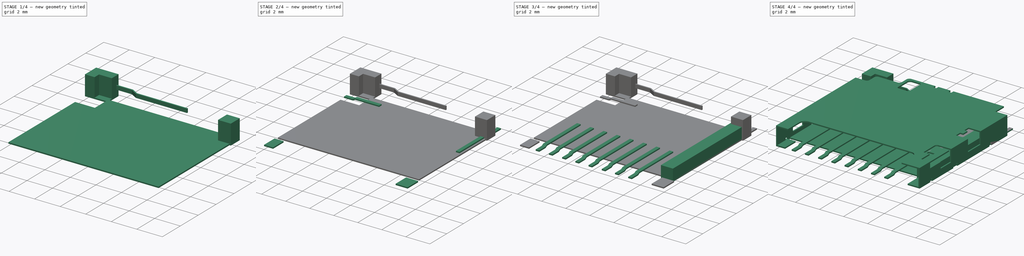
[diagram: build sequence overview — one tinted view per stage of 4, left to right]
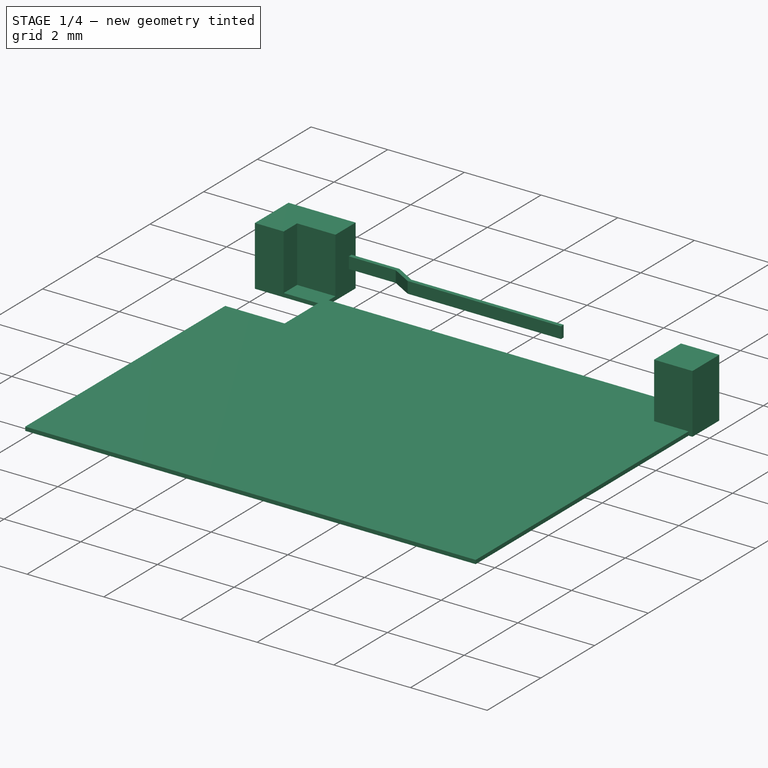
[diagram: stage 1 of 4 — iso view after this stage's code; geometry added in this stage tinted green]
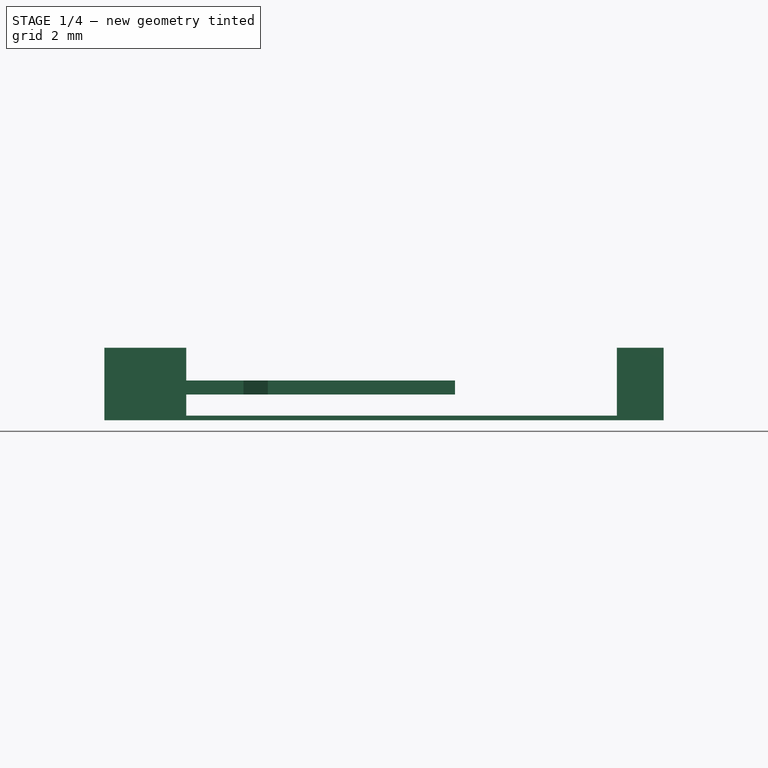
[diagram: stage 1 of 4 — front view after this stage's code; geometry added in this stage tinted green]
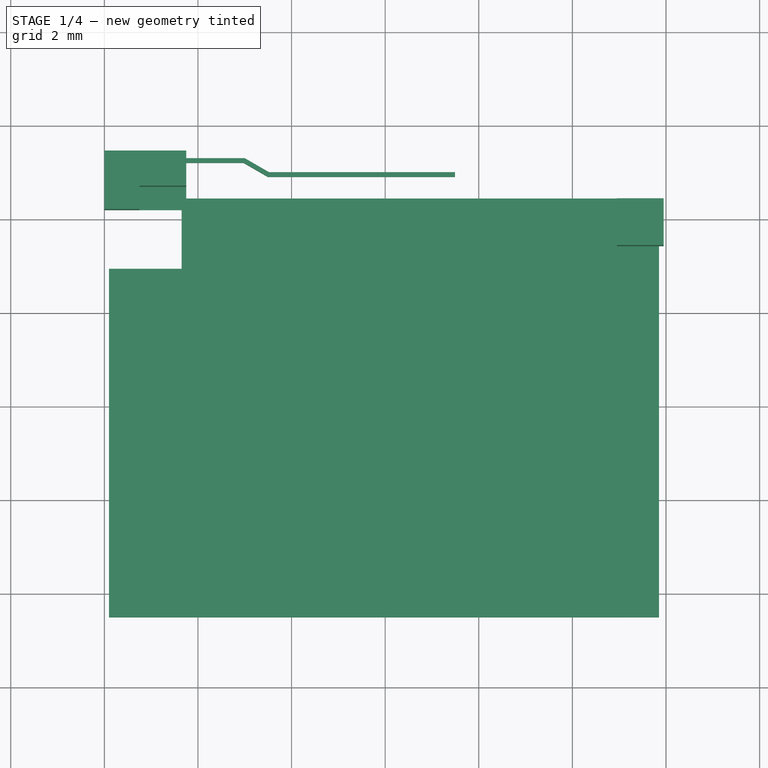
[diagram: stage 1 of 4 — top view after this stage's code; geometry added in this stage tinted green]
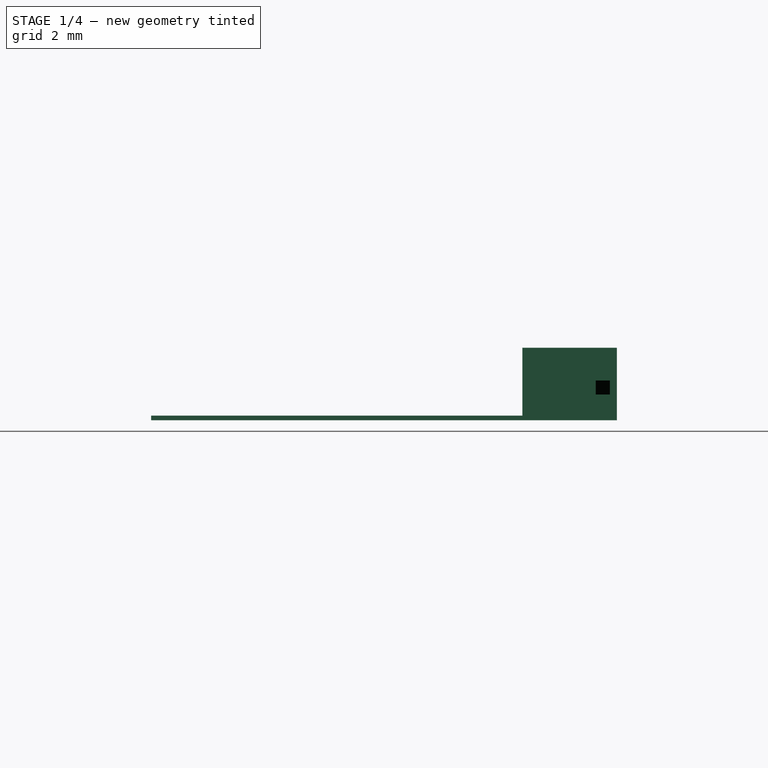
[diagram: stage 1 of 4 — right view after this stage's code; geometry added in this stage tinted green]
FCSTD DOCUMENT  (FreeCAD 0.15R4671 (Git))
Label: microSD_HC_Hirose_DM3D-SF
License: All rights reserved
LicenseURL: http://en.wikipedia.org/wiki/All_rights_reserved
objects: Sketcher::SketchObject×12, PartDesign::Pad×12, Part::FeaturePython×1, Part::MultiFuse×1
note: 38 computed .brp shape members not serialized (recipe doc carries the construction recipe); baked Part::Feature solids carry a one-line shape summary decoded from their .brp

FEATURE [Sketcher::SketchObject] Sketch009
  sketch-geometry (10):
    g0: LineSegment StartX=0 StartY=10.2 StartZ=0 EndX=0.75 EndY=10.2 EndZ=0
    g1: LineSegment StartX=0.75 StartY=10.2 StartZ=0 EndX=0.75 EndY=10.7 EndZ=0
    g2: LineSegment StartX=0.75 StartY=10.7 StartZ=0 EndX=1.75 EndY=10.7 EndZ=0
    g3: LineSegment StartX=1.75 StartY=10.7 StartZ=0 EndX=1.75 EndY=11.45 EndZ=0
    g4: LineSegment StartX=1.75 StartY=11.45 StartZ=0 EndX=0 EndY=11.45 EndZ=0
    g5: LineSegment StartX=0 StartY=11.45 StartZ=0 EndX=0 EndY=10.2 EndZ=0
    g6: LineSegment StartX=11.95 StartY=10.4314 StartZ=0 EndX=10.95 EndY=10.4314 EndZ=0
    g7: LineSegment StartX=10.95 StartY=10.4314 StartZ=0 EndX=10.95 EndY=9.43143 EndZ=0
    g8: LineSegment StartX=10.95 StartY=9.43143 StartZ=0 EndX=11.95 EndY=9.43143 EndZ=0
    g9: LineSegment StartX=11.95 StartY=9.43143 StartZ=0 EndX=11.95 EndY=10.4314 EndZ=0
  constraints (29):
    c: PointOnObject(g0,g-2)
    c: Horizontal(g0)
    c: Coincident(g0,g1)
    c: Vertical(g1)
    c: Coincident(g1,g2)
    c: Horizontal(g2)
    c: Coincident(g2,g3)
    c: Vertical(g3)
    c: Coincident(g3,g4)
    c: PointOnObject(g4,g-2)
    c: Horizontal(g4)
    c: Coincident(g4,g5)
    c: Coincident(g5,g0)
    c: Distance(g0) = 0.75
    c: Distance(g3) = 0.75
    c: Distance(g2) = 1
    c: DistanceY(g-1,g4) = 11.45
    c: Distance(g1) = 0.5
    c: Coincident(g6,g7)
    c: Coincident(g7,g8)
    c: Coincident(g8,g9)
    c: Coincident(g9,g6)
    c: Horizontal(g6)
    c: Horizontal(g8)
    c: Vertical(g7)
    c: Vertical(g9)
    c: DistanceX(g-2,g6) = 11.95
    c: Distance(g6) = 1
    c: Distance(g9) = 1
FEATURE [PartDesign::Pad] Pad009  label="Corners"
  Length = 1.55
  Length2 = 100
  Sketch = -> Sketch009
  Type = 0
FEATURE [Sketcher::SketchObject] Sketch010
  sketch-geometry (4):
    g0: LineSegment StartX=0 StartY=11.45 StartZ=0 EndX=1.75 EndY=11.45 EndZ=0
    g1: LineSegment StartX=1.75 StartY=11.45 StartZ=0 EndX=1.75 EndY=10.2 EndZ=0
    g2: LineSegment StartX=1.75 StartY=10.2 StartZ=0 EndX=0 EndY=10.2 EndZ=0
    g3: LineSegment StartX=0 StartY=10.2 StartZ=0 EndX=0 EndY=11.45 EndZ=0
  constraints (12):
    c: Coincident(g0,g1)
    c: Coincident(g1,g2)
    c: Coincident(g2,g3)
    c: Coincident(g3,g0)
    c: Horizontal(g0)
    c: Horizontal(g2)
    c: Vertical(g1)
    c: Vertical(g3)
    c: PointOnObject(g0,g-2)
    c: Distance(g1) = 1.25
    c: Distance(g0) = 1.75
    c: DistanceY(g-1,g0) = 11.45
FEATURE [PartDesign::Pad] Pad010  label="CornerBottom"
  Length = 0.1
  Length2 = 100
  Sketch = -> Sketch010
  Type = 0
FEATURE [Sketcher::SketchObject] Sketch011
  Placement = pos=(0,0,0.7) rot=(0,0,1;0rad)
  sketch-geometry (9):
    g0: LineSegment StartX=0.5 StartY=11.2 StartZ=0 EndX=2.97321 EndY=11.2 EndZ=0
    g1: LineSegment StartX=2.97321 StartY=11.2 StartZ=0 EndX=3.49282 EndY=10.9 EndZ=0
    g2: LineSegment StartX=3.49282 StartY=10.9 StartZ=0 EndX=7.49282 EndY=10.9 EndZ=0
    g3: LineSegment StartX=7.49282 StartY=10.9 StartZ=0 EndX=7.49282 EndY=11 EndZ=0
    g4: LineSegment StartX=7.49282 StartY=11 StartZ=0 EndX=3.51962 EndY=11 EndZ=0
    g5: LineSegment StartX=3.51962 StartY=11 StartZ=0 EndX=3 EndY=11.3 EndZ=0
    g6: LineSegment StartX=3 StartY=11.3 StartZ=0 EndX=0.5 EndY=11.3 EndZ=0
    g7: LineSegment StartX=0.5 StartY=11.3 StartZ=0 EndX=0.5 EndY=11.2 EndZ=0
    g8: LineSegment [constr] StartX=2.92243 StartY=11.2293 StartZ=0 EndX=2.97243 EndY=11.3159 EndZ=0
  constraints (27):
    c: Horizontal(g0)
    c: Coincident(g0,g1)
    c: Coincident(g1,g2)
    c: Horizontal(g2)
    c: Coincident(g2,g3)
    c: Vertical(g3)
    c: Coincident(g3,g4)
    c: Horizontal(g4)
    c: Coincident(g4,g5)
    c: Coincident(g5,g6)
    c: Horizontal(g6)
    c: Coincident(g6,g7)
    c: Coincident(g7,g0)
    c: Vertical(g7)
    c: Distance(g7) = 0.1
    c: Distance(g3) = 0.1
    c: PointOnObject(g8,g1)
    c: PointOnObject(g8,g5)
    c: Perpendicular(g5,g8)
    c: Parallel(g1,g5)
    c: Distance(g8) = 0.1
    c: DistanceX(g-2,g6) = 0.5
    c: Distance(g6) = 2.5
    c: Distance(g4,g6) = 0.3
    c: Distance(g2) = 4
    c: DistanceY(g-1,g6) = 11.3
    c: Angle(g6,g5) = 2.61799
FEATURE [PartDesign::Pad] Pad011  label="Detector"
  Length = 0.3
  Length2 = 100
  Midplane = true
  Placement = pos=(0,0,0.7) rot=(0,0,1;0rad)
  Sketch = -> Sketch011
  Type = 0
FEATURE [Sketcher::SketchObject] Sketch012
  sketch-geometry (6):
    g0: LineSegment StartX=0.1 StartY=1.5 StartZ=0 EndX=11.85 EndY=1.5 EndZ=0
    g1: LineSegment StartX=11.85 StartY=1.5 StartZ=0 EndX=11.85 EndY=10.45 EndZ=0
    g2: LineSegment StartX=11.85 StartY=10.45 StartZ=0 EndX=1.65 EndY=10.45 EndZ=0
    g3: LineSegment StartX=1.65 StartY=10.45 StartZ=0 EndX=1.65 EndY=8.95 EndZ=0
    g4: LineSegment StartX=1.65 StartY=8.95 StartZ=0 EndX=0.1 EndY=8.95 EndZ=0
    g5: LineSegment StartX=0.1 StartY=8.95 StartZ=0 EndX=0.1 EndY=1.5 EndZ=0
  constraints (18):
    c: Horizontal(g0)
    c: Coincident(g0,g1)
    c: Vertical(g1)
    c: Coincident(g1,g2)
    c: Horizontal(g2)
    c: Coincident(g2,g3)
    c: Vertical(g3)
    c: Coincident(g3,g4)
    c: Horizontal(g4)
    c: Coincident(g4,g5)
    c: Coincident(g5,g0)
    c: Vertical(g5)
    c: DistanceY(g-1,g0) = 1.5
    c: DistanceX(g-2,g0) = 0.1
    c: Distance(g0) = 11.75
    c: Distance(g2) = 10.2
    c: DistanceY(g-1,g1) = 10.45
    c: Distance(g3) = 1.5
FEATURE [PartDesign::Pad] Pad012  label="Bottom"
  Length = 0.1
  Length2 = 100
  Sketch = -> Sketch012
  Type = 0
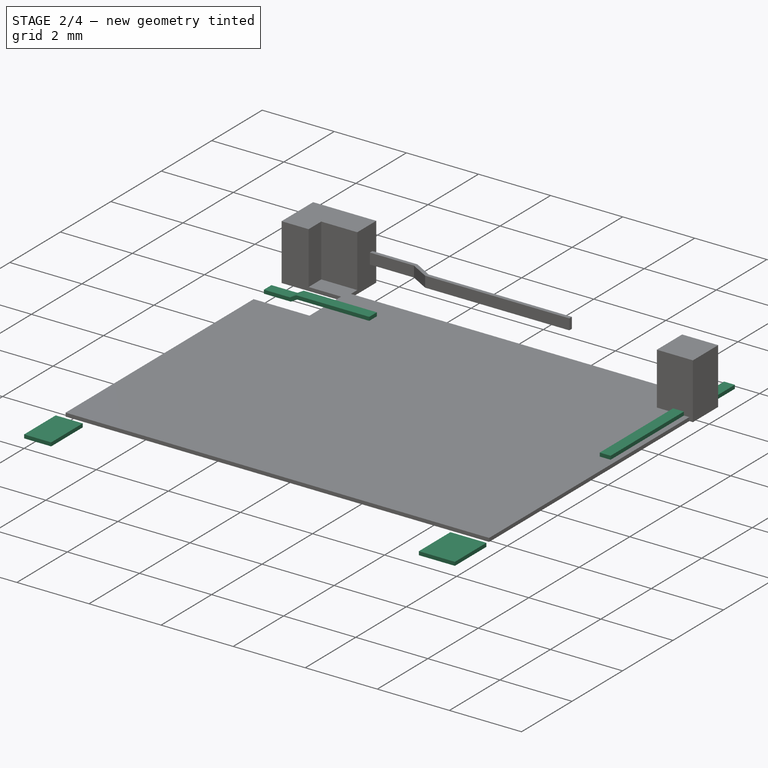
[diagram: stage 2 of 4 — iso view after this stage's code; geometry added in this stage tinted green]
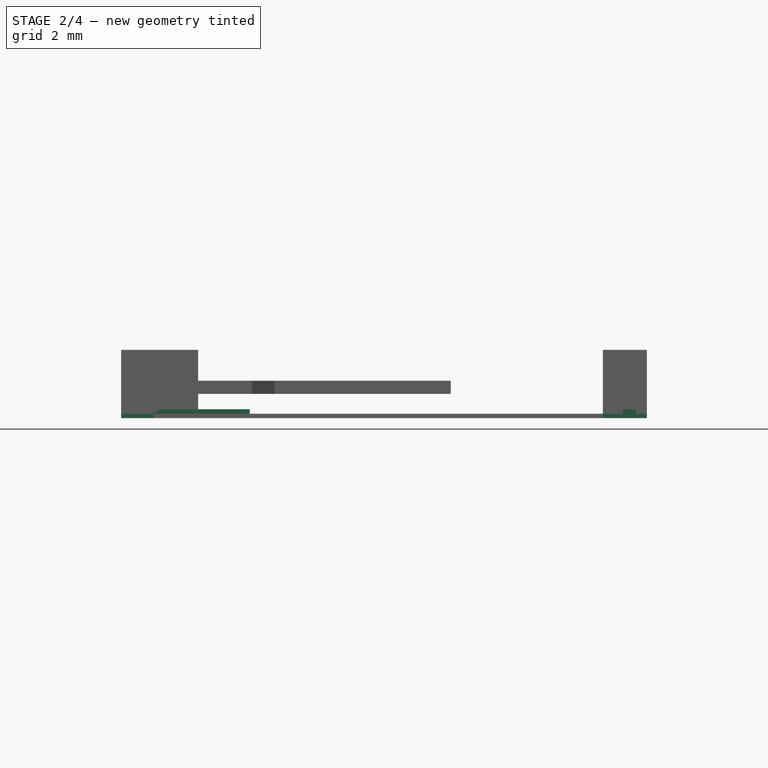
[diagram: stage 2 of 4 — front view after this stage's code; geometry added in this stage tinted green]
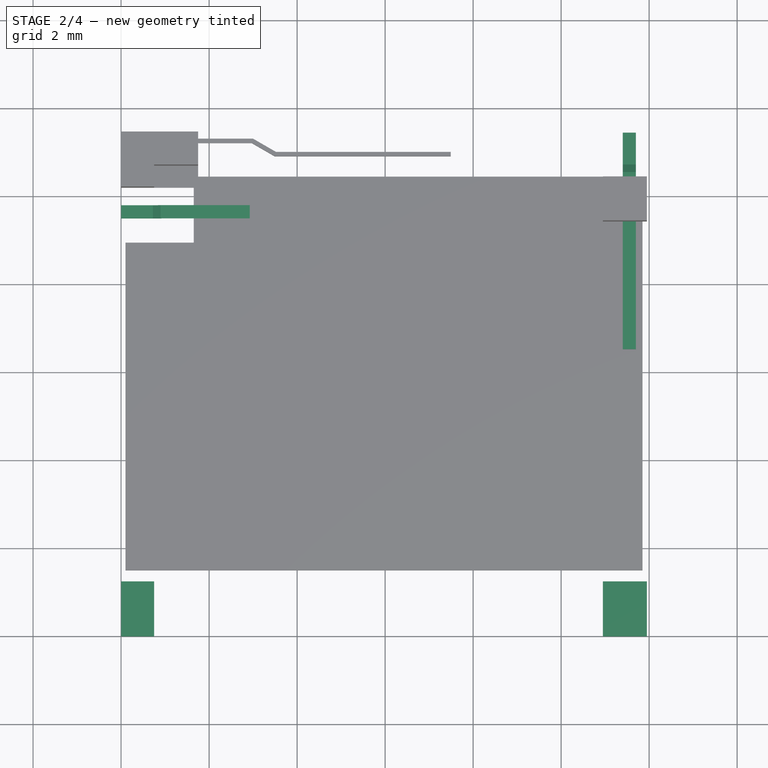
[diagram: stage 2 of 4 — top view after this stage's code; geometry added in this stage tinted green]
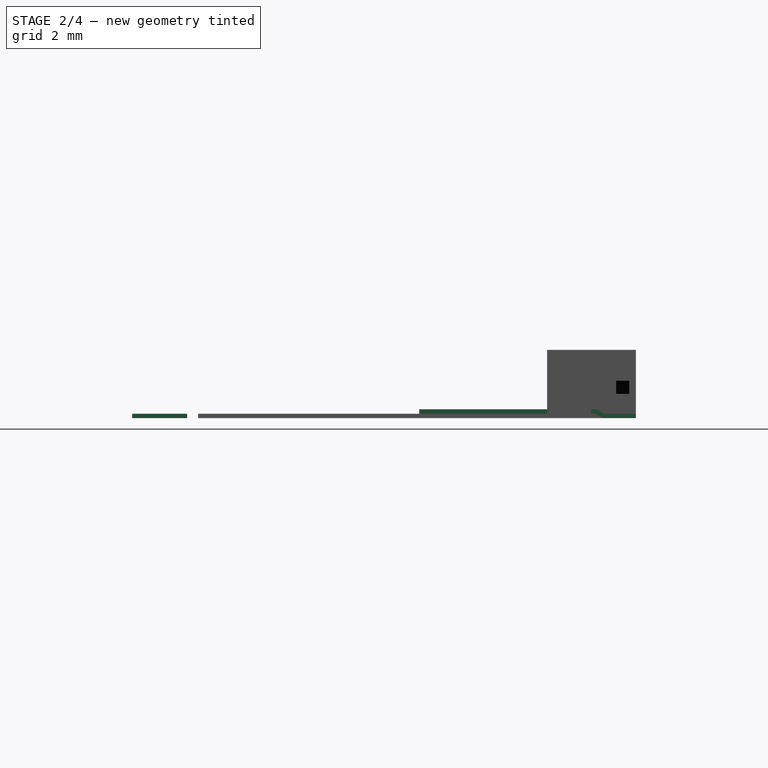
[diagram: stage 2 of 4 — right view after this stage's code; geometry added in this stage tinted green]
FEATURE [Sketcher::SketchObject] Sketch006
  sketch-geometry (8):
    g0: LineSegment StartX=11.95 StartY=0 StartZ=0 EndX=10.95 EndY=0 EndZ=0
    g1: LineSegment StartX=10.95 StartY=0 StartZ=0 EndX=10.95 EndY=1.25 EndZ=0
    g2: LineSegment StartX=10.95 StartY=1.25 StartZ=0 EndX=11.95 EndY=1.25 EndZ=0
    g3: LineSegment StartX=11.95 StartY=1.25 StartZ=0 EndX=11.95 EndY=0 EndZ=0
    g4: LineSegment StartX=0 StartY=0 StartZ=0 EndX=0.75 EndY=0 EndZ=0
    g5: LineSegment StartX=0.75 StartY=0 StartZ=0 EndX=0.75 EndY=1.25 EndZ=0
    g6: LineSegment StartX=0.75 StartY=1.25 StartZ=0 EndX=0 EndY=1.25 EndZ=0
    g7: LineSegment StartX=0 StartY=1.25 StartZ=0 EndX=0 EndY=0 EndZ=0
  constraints (23):
    c: Coincident(g0,g1)
    c: Coincident(g1,g2)
    c: Coincident(g2,g3)
    c: Coincident(g3,g0)
    c: Horizontal(g0)
    c: Horizontal(g2)
    c: Vertical(g1)
    c: Vertical(g3)
    c: PointOnObject(g0,g-1)
    c: Coincident(g4,g5)
    c: Coincident(g5,g6)
    c: Coincident(g6,g7)
    c: Coincident(g7,g4)
    c: Horizontal(g4)
    c: Horizontal(g6)
    c: Vertical(g5)
    c: Vertical(g7)
    c: Coincident(g4,g-1)
    c: Distance(g7) = 1.25
    c: Distance(g1) = 1.25
    c: Distance(g6) = 0.75
    c: Distance(g2) = 1
    c: Distance(g-1,g0) = 11.95
FEATURE [PartDesign::Pad] Pad006  label="BottomMetal"
  Length = 0.1
  Length2 = 100
  Sketch = -> Sketch006
  Type = 0
FEATURE [Sketcher::SketchObject] Sketch007
  Placement = pos=(11.55,0,0) rot=(0.57735,0.57735,0.57735;2.0944rad)
  sketch-geometry (9):
    g0: LineSegment StartX=11.45 StartY=0 StartZ=0 EndX=11.45 EndY=0.1 EndZ=0
    g1: LineSegment StartX=11.45 StartY=0.1 StartZ=0 EndX=10.7268 EndY=0.1 EndZ=0
    g2: LineSegment StartX=10.7268 StartY=0.1 StartZ=0 EndX=10.5536 EndY=0.2 EndZ=0
    g3: LineSegment StartX=10.5536 StartY=0.2 StartZ=0 EndX=6.52679 EndY=0.2 EndZ=0
    g4: LineSegment StartX=6.52679 StartY=0.2 StartZ=0 EndX=6.52679 EndY=0.1 EndZ=0
    g5: LineSegment StartX=6.52679 StartY=0.1 StartZ=0 EndX=10.5268 EndY=0.1 EndZ=0
    g6: LineSegment StartX=10.5268 StartY=0.1 StartZ=0 EndX=10.7 EndY=0 EndZ=0
    g7: LineSegment StartX=10.7 StartY=0 StartZ=0 EndX=11.45 EndY=0 EndZ=0
    g8: LineSegment [constr] StartX=10.7004 StartY=-0.000257824 StartZ=0 EndX=10.7504 EndY=0.0863447 EndZ=0
  constraints (27):
    c: PointOnObject(g0,g-1)
    c: Vertical(g0)
    c: Coincident(g0,g1)
    c: Horizontal(g1)
    c: Coincident(g1,g2)
    c: Coincident(g2,g3)
    c: Horizontal(g3)
    c: Coincident(g3,g4)
    c: Coincident(g4,g5)
    c: Horizontal(g5)
    c: Coincident(g5,g6)
    c: PointOnObject(g6,g-1)
    c: Coincident(g6,g7)
    c: Coincident(g7,g0)
    c: Parallel(g2,g6)
    c: Distance(g0) = 0.1
    c: Perpendicular(g5,g4)
    c: Distance(g4) = 0.1
    c: PointOnObject(g8,g6)
    c: PointOnObject(g8,g2)
    c: Perpendicular(g8,g6)
    c: Distance(g8) = 0.1
    c: Distance(g7) = 0.75
    c: Angle(g-1,g6) = 2.61799
    c: DistanceY(g-1,g5) = 0.1
    c: Distance(g5) = 4
    c: DistanceX(g-2,g0) = 11.45
FEATURE [PartDesign::Pad] Pad007  label="CDS_A"
  Length = 0.3
  Length2 = 100
  Midplane = true
  Placement = pos=(11.55,0,0) rot=(0.57735,0.57735,0.57735;2.0944rad)
  Sketch = -> Sketch007
  Type = 0
FEATURE [Sketcher::SketchObject] Sketch008
  Placement = pos=(0,9.65,0) rot=(1,0,0;1.5708rad)
  sketch-geometry (9):
    g0: LineSegment StartX=0 StartY=0 StartZ=0 EndX=0.75 EndY=0 EndZ=0
    g1: LineSegment StartX=0.75 StartY=0 StartZ=0 EndX=0.923205 EndY=0.1 EndZ=0
    g2: LineSegment StartX=0.923205 StartY=0.1 StartZ=0 EndX=2.92321 EndY=0.1 EndZ=0
    g3: LineSegment StartX=2.92321 StartY=0.1 StartZ=0 EndX=2.92321 EndY=0.2 EndZ=0
    g4: LineSegment StartX=2.92321 StartY=0.2 StartZ=0 EndX=0.89641 EndY=0.2 EndZ=0
    g5: LineSegment StartX=0.89641 StartY=0.2 StartZ=0 EndX=0.723205 EndY=0.1 EndZ=0
    g6: LineSegment StartX=0.723205 StartY=0.1 StartZ=0 EndX=0 EndY=0.1 EndZ=0
    g7: LineSegment StartX=0 StartY=0.1 StartZ=0 EndX=0 EndY=0 EndZ=0
    g8: LineSegment [constr] StartX=0.0520874 StartY=-0.28747 StartZ=0 EndX=0.102087 EndY=-0.374073 EndZ=0
  constraints (26):
    c: Coincident(g-1,g0)
    c: Horizontal(g0)
    c: Coincident(g0,g1)
    c: Coincident(g1,g2)
    c: Horizontal(g2)
    c: Coincident(g2,g3)
    c: Vertical(g3)
    c: Coincident(g3,g4)
    c: Horizontal(g4)
    c: Coincident(g4,g5)
    c: Coincident(g5,g6)
    c: Horizontal(g6)
    c: Coincident(g6,g7)
    c: Coincident(g7,g0)
    c: Vertical(g7)
    c: Distance(g7) = 0.1
    c: Distance(g3) = 0.1
    c: Parallel(g5,g1)
    c: PointOnObject(g8,g5)
    c: PointOnObject(g8,g1)
    c: Distance(g8) = 0.1
    c: Distance(g0) = 0.75
    c: Distance(g2) = 2
    c: DistanceY(g-1,g1) = 0.1
    c: Perpendicular(g1,g8)
    c: Angle(g1,g-1) = 2.61799
FEATURE [PartDesign::Pad] Pad008  label="CDS_B"
  Length = 0.3
  Length2 = 100
  Midplane = true
  Placement = pos=(0,9.65,0) rot=(1,0,0;1.5708rad)
  Sketch = -> Sketch008
  Type = 0
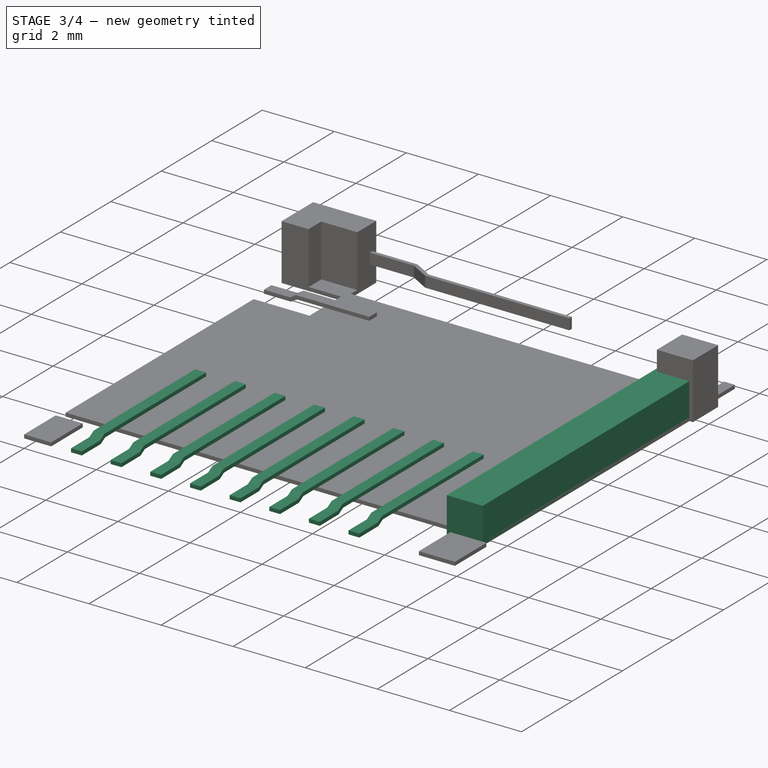
[diagram: stage 3 of 4 — iso view after this stage's code; geometry added in this stage tinted green]
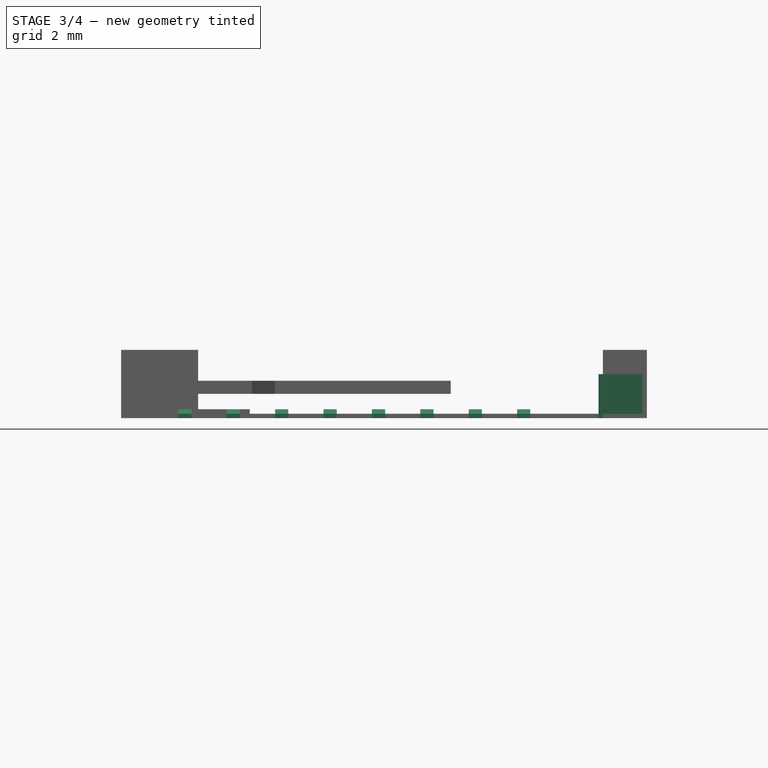
[diagram: stage 3 of 4 — front view after this stage's code; geometry added in this stage tinted green]
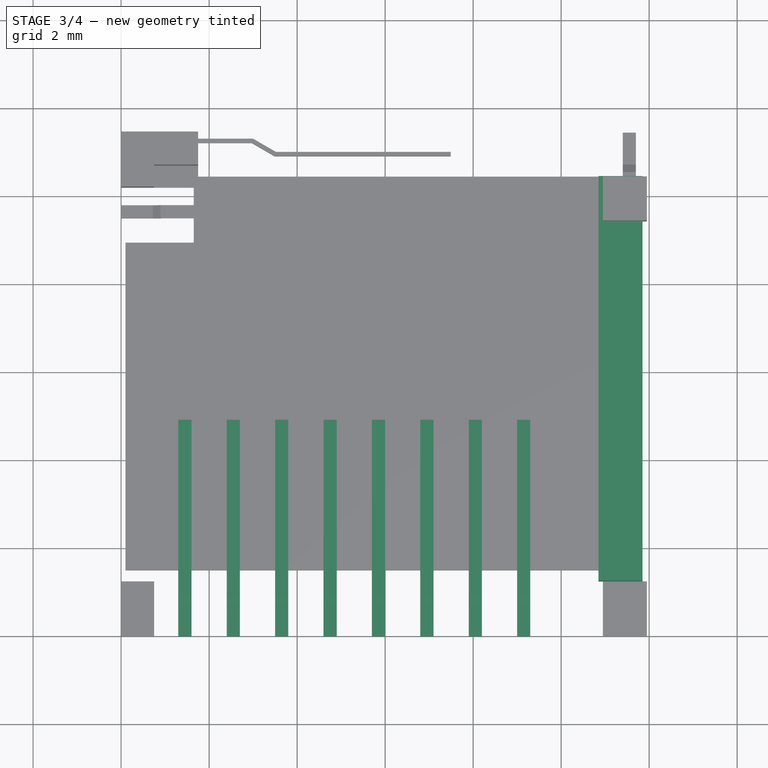
[diagram: stage 3 of 4 — top view after this stage's code; geometry added in this stage tinted green]
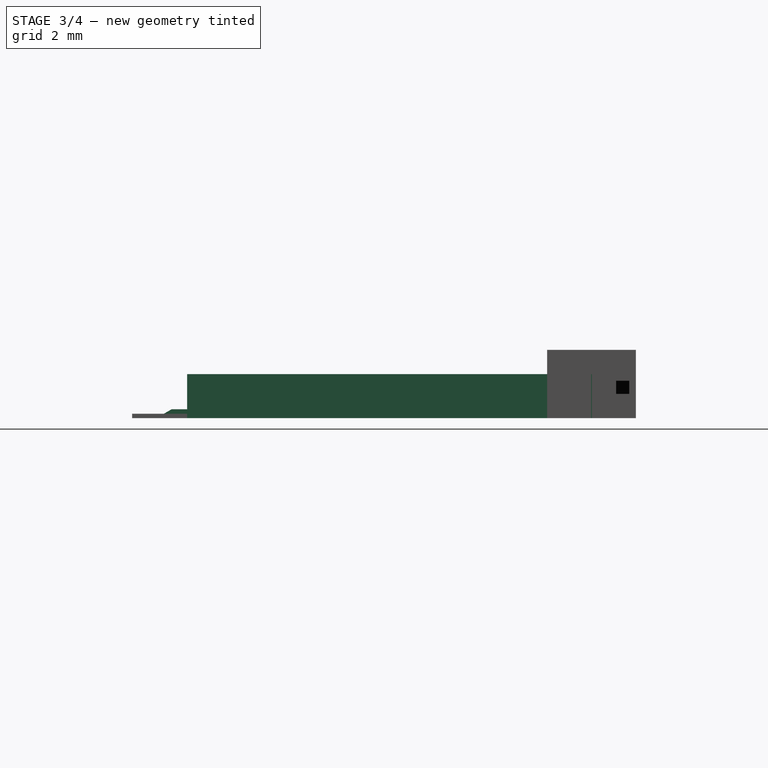
[diagram: stage 3 of 4 — right view after this stage's code; geometry added in this stage tinted green]
FEATURE [Sketcher::SketchObject] Sketch004
  Placement = pos=(1.45,0,0) rot=(0.57735,0.57735,0.57735;2.0944rad)
  sketch-geometry (9):
    g0: LineSegment StartX=0 StartY=0 StartZ=0 EndX=0.75 EndY=0 EndZ=0
    g1: LineSegment StartX=0.75 StartY=0 StartZ=0 EndX=0.923205 EndY=0.1 EndZ=0
    g2: LineSegment StartX=0.923205 StartY=0.1 StartZ=0 EndX=4.92321 EndY=0.1 EndZ=0
    g3: LineSegment StartX=4.92321 StartY=0.1 StartZ=0 EndX=4.92321 EndY=0.2 EndZ=0
    g4: LineSegment StartX=4.92321 StartY=0.2 StartZ=0 EndX=0.89641 EndY=0.2 EndZ=0
    g5: LineSegment StartX=0.89641 StartY=0.2 StartZ=0 EndX=0.723205 EndY=0.1 EndZ=0
    g6: LineSegment StartX=0.723205 StartY=0.1 StartZ=0 EndX=0 EndY=0.1 EndZ=0
    g7: LineSegment StartX=0 StartY=0.1 StartZ=0 EndX=0 EndY=0 EndZ=0
    g8: LineSegment [constr] StartX=0.849951 StartY=0.173177 StartZ=0 EndX=0.899951 EndY=0.0865745 EndZ=0
  constraints (26):
    c: Coincident(g-1,g0)
    c: Horizontal(g0)
    c: Coincident(g0,g1)
    c: Coincident(g1,g2)
    c: Horizontal(g2)
    c: Coincident(g2,g3)
    c: Vertical(g3)
    c: Coincident(g3,g4)
    c: Horizontal(g4)
    c: Coincident(g4,g5)
    c: Coincident(g5,g6)
    c: PointOnObject(g6,g-2)
    c: Horizontal(g6)
    c: Coincident(g7,g6)
    c: Coincident(g7,g-1)
    c: Distance(g7) = 0.1
    c: Distance(g3) = 0.1
    c: Parallel(g5,g1)
    c: PointOnObject(g8,g5)
    c: PointOnObject(g8,g1)
    c: Perpendicular(g5,g8)
    c: Distance(g8) = 0.1
    c: Distance(g0) = 0.75
    c: Distance(g2) = 4
    c: Angle(g1,g-1) = 2.61799
    c: DistanceY(g-1,g1) = 0.1
FEATURE [PartDesign::Pad] Pad004
  Length = 0.3
  Length2 = 100
  Midplane = true
  Placement = pos=(1.45,0,0) rot=(0.57735,0.57735,0.57735;2.0944rad)
  Sketch = -> Sketch004
  Type = 0
FEATURE [Part::FeaturePython] Array  # Draft array (typed FeaturePython)
  Angle = 360
  ArrayType = 0
  Axis = (0,0,1)
  Base = -> Pad004
  Center = (0,0,0)
  Fuse = false
  IntervalAxis = (0,0,0)
  IntervalX = (1.1,0,0)
  IntervalY = (0,1,0)
  IntervalZ = (0,0,0)
  NumberPolar = 1
  NumberX = 8
  NumberY = 1
  NumberZ = 1
FEATURE [Sketcher::SketchObject] Sketch005
  Placement = pos=(-0.1,0,0) rot=(0,0,1;0rad)
  sketch-geometry (4):
    g0: LineSegment StartX=10.95 StartY=10.45 StartZ=0 EndX=11.95 EndY=10.45 EndZ=0
    g1: LineSegment StartX=11.95 StartY=10.45 StartZ=0 EndX=11.95 EndY=1.25 EndZ=0
    g2: LineSegment StartX=11.95 StartY=1.25 StartZ=0 EndX=10.95 EndY=1.25 EndZ=0
    g3: LineSegment StartX=10.95 StartY=1.25 StartZ=0 EndX=10.95 EndY=10.45 EndZ=0
  constraints (12):
    c: Coincident(g0,g1)
    c: Coincident(g1,g2)
    c: Coincident(g2,g3)
    c: Coincident(g3,g0)
    c: Horizontal(g0)
    c: Horizontal(g2)
    c: Vertical(g1)
    c: Vertical(g3)
    c: Distance(g0) = 1
    c: DistanceY(g-1,g1) = 1.25
    c: DistanceX(g-2,g1) = 11.95
    c: DistanceY(g-1,g0) = 10.45
FEATURE [PartDesign::Pad] Pad005  label="Right"
  Length = 1
  Length2 = 100
  Placement = pos=(-0.1,0,0) rot=(0,0,1;0rad)
  Sketch = -> Sketch005
  Type = 0
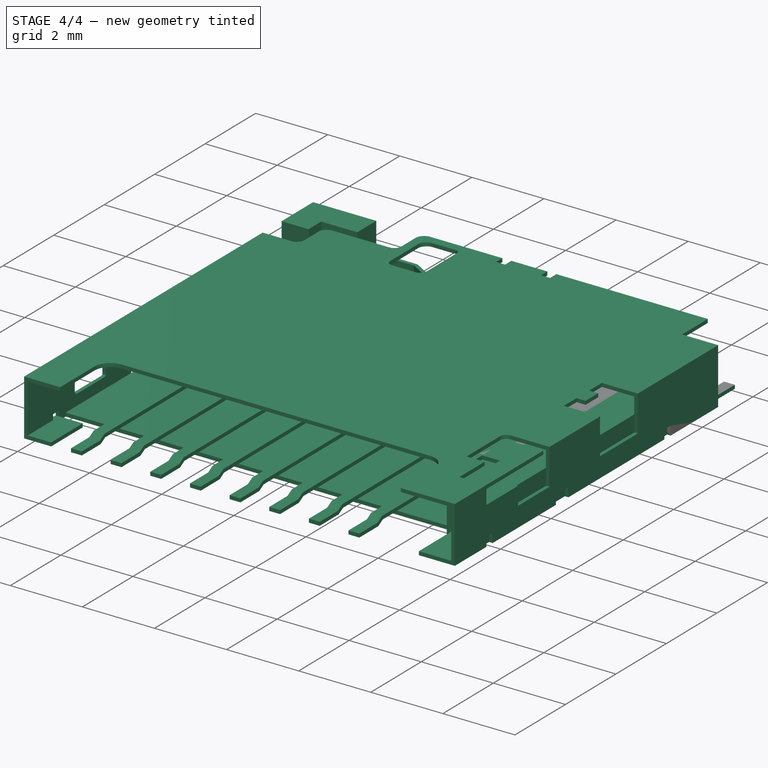
[diagram: stage 4 of 4 — iso view after this stage's code; geometry added in this stage tinted green]
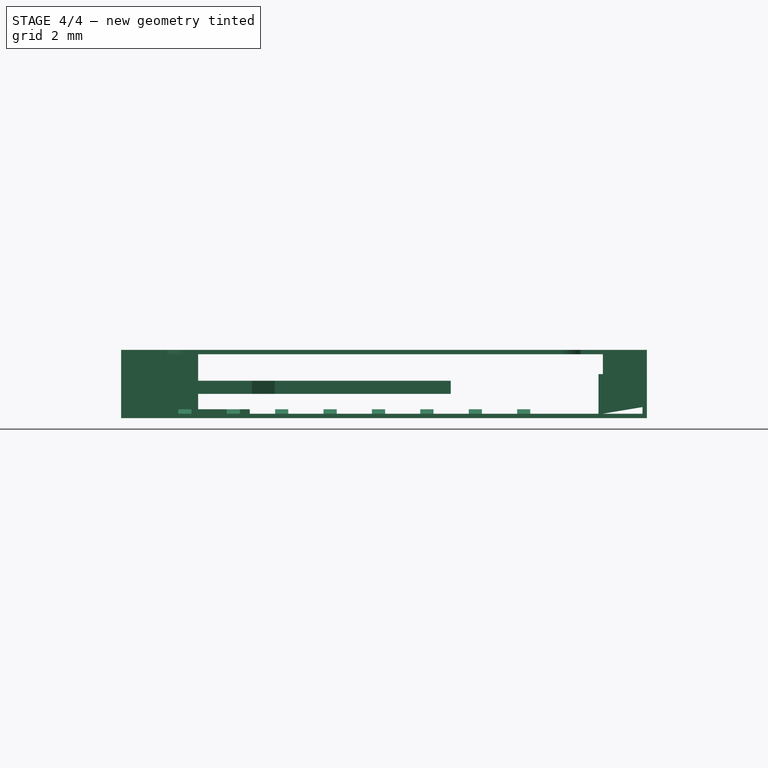
[diagram: stage 4 of 4 — front view after this stage's code; geometry added in this stage tinted green]
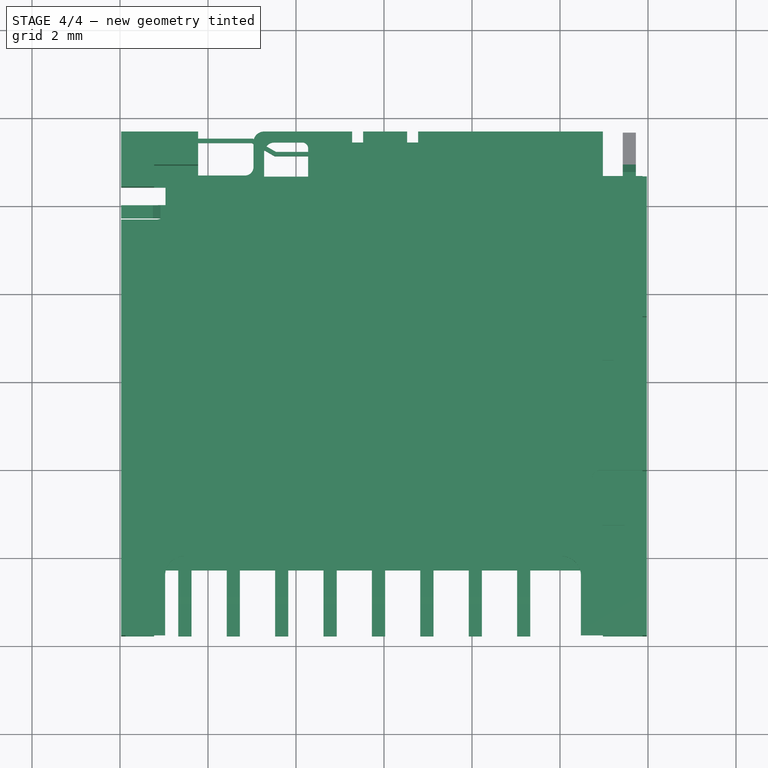
[diagram: stage 4 of 4 — top view after this stage's code; geometry added in this stage tinted green]
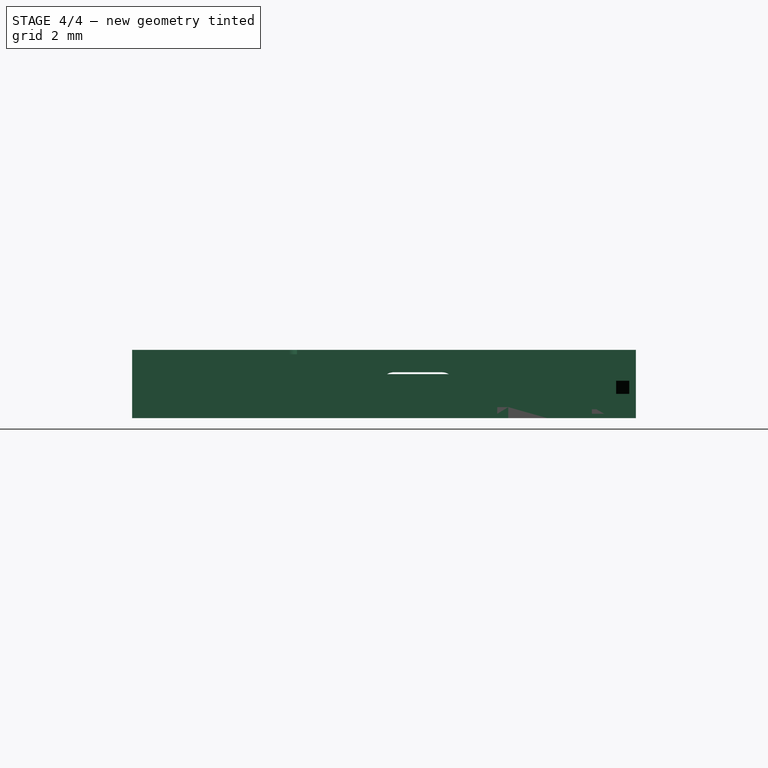
[diagram: stage 4 of 4 — right view after this stage's code; geometry added in this stage tinted green]
FEATURE [Sketcher::SketchObject] Sketch
  Placement = pos=(0,0,1.55) rot=(0,0,1;0rad)
  sketch-geometry (56):
    g0: LineSegment StartX=0 StartY=0 StartZ=0 EndX=0 EndY=9.45 EndZ=0
    g1: LineSegment StartX=0 StartY=9.45 StartZ=0 EndX=0.803562 EndY=9.45 EndZ=0
    g2: LineSegment StartX=1.00953 StartY=9.65597 StartZ=0 EndX=1.00953 EndY=10.2255 EndZ=0
    g3: LineSegment StartX=1.234 StartY=10.45 StartZ=0 EndX=2.81326 EndY=10.45 EndZ=0
    g4: LineSegment StartX=3.00953 StartY=10.6463 StartZ=0 EndX=3.00953 EndY=11.2118 EndZ=0
    g5: LineSegment StartX=3.24776 StartY=11.45 StartZ=0 EndX=5.25 EndY=11.45 EndZ=0
    g6: LineSegment StartX=5.25 StartY=11.45 StartZ=0 EndX=5.25 EndY=11.2 EndZ=0
    g7: LineSegment StartX=5.25 StartY=11.2 StartZ=0 EndX=5.5 EndY=11.2 EndZ=0
    g8: LineSegment StartX=5.5 StartY=11.2 StartZ=0 EndX=5.5 EndY=11.45 EndZ=0
    g9: LineSegment StartX=5.5 StartY=11.45 StartZ=0 EndX=6.5 EndY=11.45 EndZ=0
    g10: LineSegment StartX=6.5 StartY=11.45 StartZ=0 EndX=6.5 EndY=11.2 EndZ=0
    g11: LineSegment StartX=6.5 StartY=11.2 StartZ=0 EndX=6.75 EndY=11.2 EndZ=0
    g12: LineSegment StartX=6.75 StartY=11.2 StartZ=0 EndX=6.75 EndY=11.45 EndZ=0
    g13: LineSegment StartX=6.75 StartY=11.45 StartZ=0 EndX=10.95 EndY=11.45 EndZ=0
    g14: LineSegment StartX=10.95 StartY=11.45 StartZ=0 EndX=10.95 EndY=9.45 EndZ=0
    g15: LineSegment StartX=10.95 StartY=9.45 StartZ=0 EndX=11.95 EndY=9.45 EndZ=0
    g16: LineSegment StartX=11.95 StartY=9.45 StartZ=0 EndX=11.95 EndY=7.25 EndZ=0
    g17: LineSegment StartX=11.95 StartY=7.25 StartZ=0 EndX=10.95 EndY=7.25 EndZ=0
    g18: LineSegment StartX=10.95 StartY=7.25 StartZ=0 EndX=10.95 EndY=6.75 EndZ=0
    g19: LineSegment StartX=10.95 StartY=6.75 StartZ=0 EndX=11.2 EndY=6.75 EndZ=0
    g20: LineSegment StartX=11.2 StartY=6.75 StartZ=0 EndX=11.2 EndY=6.25 EndZ=0
    g21: LineSegment StartX=11.2 StartY=6.25 StartZ=0 EndX=10.95 EndY=6.25 EndZ=0
    g22: LineSegment StartX=10.95 StartY=6.25 StartZ=0 EndX=10.95 EndY=5.75 EndZ=0
    g23: LineSegment StartX=10.95 StartY=5.75 StartZ=0 EndX=11.95 EndY=5.75 EndZ=0
    g24: LineSegment StartX=11.95 StartY=5.75 StartZ=0 EndX=11.95 EndY=3.75 EndZ=0
    g25: LineSegment StartX=11.95 StartY=3.75 StartZ=0 EndX=10.88 EndY=3.75 EndZ=0
    g26: LineSegment StartX=10.7 StartY=3.56997 StartZ=0 EndX=10.7 EndY=2.25 EndZ=0
    g27: LineSegment StartX=10.7 StartY=2.25 StartZ=0 EndX=11.2 EndY=2.25 EndZ=0
    g28: LineSegment StartX=11.2 StartY=2.25 StartZ=0 EndX=11.2 EndY=1.25 EndZ=0
    g29: LineSegment StartX=11.2 StartY=1.25 StartZ=0 EndX=11.45 EndY=1.25 EndZ=0
    g30: LineSegment StartX=11.45 StartY=1.25 StartZ=0 EndX=11.45 EndY=2.5 EndZ=0
    g31: LineSegment StartX=11.45 StartY=2.5 StartZ=0 EndX=10.95 EndY=2.5 EndZ=0
    g32: LineSegment StartX=10.95 StartY=2.5 StartZ=0 EndX=10.95 EndY=3.5 EndZ=0
    g33: LineSegment StartX=10.95 StartY=3.5 StartZ=0 EndX=11.95 EndY=3.5 EndZ=0
    g34: LineSegment StartX=11.95 StartY=3.5 StartZ=0 EndX=11.95 EndY=0 EndZ=0
    g35: LineSegment StartX=11.95 StartY=0 StartZ=0 EndX=10.45 EndY=0 EndZ=0
    g36: LineSegment StartX=10.45 StartY=0 StartZ=0 EndX=10.45 EndY=1.35424 EndZ=0
    g37: LineSegment StartX=10.0042 StartY=1.80001 StartZ=0 EndX=1.44105 EndY=1.80001 EndZ=0
    g38: LineSegment StartX=1 StartY=1.35895 StartZ=0 EndX=1 EndY=0 EndZ=0
    g39: LineSegment StartX=1 StartY=0 StartZ=0 EndX=0 EndY=0 EndZ=0
    g40: LineSegment [constr] StartX=3 StartY=11.45 StartZ=0 EndX=0 EndY=11.45 EndZ=0
    g41: LineSegment StartX=3.48487 StartY=11.2 StartZ=0 EndX=4.12149 EndY=11.2 EndZ=0
    g42: LineSegment StartX=4.25 StartY=11.0715 StartZ=0 EndX=4.25 EndY=9.88592 EndZ=0
    g43: LineSegment StartX=4.06408 StartY=9.7 StartZ=0 EndX=3.41678 EndY=9.7 EndZ=0
    g44: LineSegment StartX=3.25 StartY=9.86678 StartZ=0 EndX=3.25 EndY=10.9651 EndZ=0
    g45: ArcOfCircle CenterX=3.48487 CenterY=10.9651 CenterZ=0 NormalX=0 NormalY=0 NormalZ=1 Radius=0.234872 StartAngle=1.5708 EndAngle=3.14159
    g46: ArcOfCircle CenterX=4.12149 CenterY=11.0715 CenterZ=0 NormalX=0 NormalY=0 NormalZ=1 Radius=0.128511 StartAngle=0 EndAngle=1.5708
    g47: ArcOfCircle CenterX=3.41678 CenterY=9.86678 CenterZ=0 NormalX=0 NormalY=0 NormalZ=1 Radius=0.166776 StartAngle=3.14159 EndAngle=4.71239
    g48: ArcOfCircle CenterX=4.06408 CenterY=9.88592 CenterZ=0 NormalX=0 NormalY=0 NormalZ=1 Radius=0.185918 StartAngle=4.71239 EndAngle=6.28319
    g49: ArcOfCircle CenterX=1.234 CenterY=10.2255 CenterZ=0 NormalX=0 NormalY=0 NormalZ=1 Radius=0.224462 StartAngle=1.5708 EndAngle=3.14159
    g50: ArcOfCircle CenterX=0.803562 CenterY=9.65597 CenterZ=0 NormalX=0 NormalY=0 NormalZ=1 Radius=0.205973 StartAngle=4.71239 EndAngle=6.28319
    g51: ArcOfCircle CenterX=2.81326 CenterY=10.6463 CenterZ=0 NormalX=0 NormalY=0 NormalZ=1 Radius=0.196279 StartAngle=4.71239 EndAngle=6.28319
    g52: ArcOfCircle CenterX=3.24776 CenterY=11.2118 CenterZ=0 NormalX=0 NormalY=0 NormalZ=1 Radius=0.238225 StartAngle=1.5708 EndAngle=3.14159
    g53: ArcOfCircle CenterX=1.44105 CenterY=1.35895 CenterZ=0 NormalX=0 NormalY=0 NormalZ=1 Radius=0.441054 StartAngle=1.5708 EndAngle=3.14159
    g54: ArcOfCircle CenterX=10.0042 CenterY=1.35424 CenterZ=0 NormalX=0 NormalY=0 NormalZ=1 Radius=0.445763 StartAngle=0 EndAngle=1.5708
    g55: ArcOfCircle CenterX=10.88 CenterY=3.56997 CenterZ=0 NormalX=0 NormalY=0 NormalZ=1 Radius=0.180027 StartAngle=1.5708 EndAngle=3.14159
  constraints (136):
    c: Coincident(g-1,g0)
    c: PointOnObject(g0,g-2)
    c: Coincident(g0,g1)
    c: Vertical(g2)
    c: Horizontal(g3)
    c: Vertical(g4)
    c: Horizontal(g5)
    c: Coincident(g5,g6)
    c: Coincident(g6,g7)
    c: Horizontal(g7)
    c: Coincident(g7,g8)
    c: Coincident(g8,g9)
    c: Coincident(g9,g10)
    c: Vertical(g10)
    c: Coincident(g10,g11)
    c: Horizontal(g11)
    c: Coincident(g11,g12)
    c: Coincident(g12,g13)
    c: Horizontal(g13)
    c: Coincident(g13,g14)
    c: Vertical(g14)
    c: Coincident(g14,g15)
    c: Horizontal(g15)
    c: Coincident(g15,g16)
    c: Vertical(g16)
    c: Coincident(g16,g17)
    c: Horizontal(g17)
    c: Coincident(g17,g18)
    c: Coincident(g18,g19)
    c: Coincident(g19,g20)
    c: Vertical(g20)
    c: Coincident(g20,g21)
    c: Horizontal(g21)
    c: Coincident(g21,g22)
    c: Vertical(g22)
    c: Coincident(g22,g23)
    c: Horizontal(g23)
    c: Coincident(g23,g24)
    c: Vertical(g24)
    c: Coincident(g24,g25)
    c: Horizontal(g25)
    c: Vertical(g26)
    c: Coincident(g26,g27)
    c: Coincident(g27,g28)
    c: Vertical(g28)
    c: Coincident(g28,g29)
    c: Horizontal(g29)
    c: Coincident(g29,g30)
    c: Vertical(g30)
    c: Coincident(g30,g31)
    c: Horizontal(g31)
    c: Coincident(g31,g32)
    c: Vertical(g32)
    c: Coincident(g32,g33)
    c: Horizontal(g33)
    c: Coincident(g33,g34)
    c: Vertical(g34)
    c: Coincident(g34,g35)
    c: Horizontal(g35)
    c: Coincident(g35,g36)
    c: Vertical(g36)
    c: Horizontal(g37)
    c: Vertical(g38)
    c: Coincident(g38,g39)
    c: Coincident(g39,g0)
    c: Horizontal(g39)
    c: Perpendicular(g5,g6)
    c: Parallel(g8,g6)
    c: Parallel(g10,g12)
    c: Parallel(g9,g5)
    c: Equal(g6,g8)
    c: Equal(g8,g10)
    c: Equal(g10,g12)
    c: Equal(g7,g11)
    c: Perpendicular(g2,g1)
    c: PointOnObject(g40,g-2)
    c: Horizontal(g40)
    c: Distance(g7) = 0.25
    c: Distance(g6) = 0.25
    c: Distance(g17) = 1
    c: Parallel(g19,g21)
    c: Equal(g19,g21)
    c: Parallel(g18,g22)
    c: Equal(g23,g17)
    c: Distance(g19) = 0.25
    c: Distance(g20) = 0.5
    c: Distance(g18) = 0.5
    c: Equal(g18,g22)
    c: Distance(g15) = 1
    c: Distance(g33) = 1
    c: Distance(g32) = 1
    c: Perpendicular(g26,g27)
    c: Distance(g31) = 0.5
    c: Distance(g29) = 0.25
    c: PointOnObject(g35,g-1)
    c: Distance(g35) = 1.5
    c: Distance(g39) = 1
    c: Equal(g17,g23)
    c: Distance(g24,g33) = 0.25
    c: Distance(g31,g27) = 0.25
    c: Distance(g32,g26) = 0.25
    c: Distance(g28) = 1
    c: Distance(g14) = 2
    c: Distance(g-1,g40) = 11.45
    c: Distance(g-1,g34) = 11.95
    c: Distance(g40,g8) = 5.5
    c: Distance(g9) = 1
    c: Horizontal(g41)
    c: Horizontal(g43)
    c: Vertical(g42)
    c: Vertical(g44)
    c: Tangent(g41,g45) = 1.5708
    c: Tangent(g44,g45) = 1.5708
    c: Tangent(g41,g46) = 1.5708
    c: Tangent(g42,g46) = 1.5708
    c: Tangent(g44,g47) = 1.5708
    c: Tangent(g43,g47) = 1.5708
    c: Tangent(g42,g48) = 1.5708
    c: Tangent(g43,g48) = 1.5708
    c: Tangent(g3,g49) = 1.5708
    c: Tangent(g2,g49) = 1.5708
    c: Tangent(g2,g50) = -1.5708
    c: Tangent(g1,g50) = -1.5708
    c: Tangent(g4,g51) = -1.5708
    c: Tangent(g3,g51) = -1.5708
    c: Tangent(g5,g52) = 1.5708
    c: Tangent(g4,g52) = 1.5708
    c: Tangent(g38,g53) = -1.5708
    c: Tangent(g37,g53) = -1.5708
    c: Tangent(g37,g54) = -1.5708
    c: Tangent(g36,g54) = -1.5708
    c: Tangent(g26,g55) = -1.5708
    c: Tangent(g25,g55) = -1.5708
    c: Distance(g29,g35) = 1.25
    c: Distance(g24) = 2
    c: Distance(g3,g40) = 1
FEATURE [PartDesign::Pad] Pad  label="Top"
  Length = 0.1
  Length2 = 100
  Placement = pos=(0,0,1.55) rot=(0,0,1;0rad)
  Reversed = true
  Sketch = -> Sketch
  Type = 0
FEATURE [Sketcher::SketchObject] Sketch001
  Placement = pos=(0,0,0) rot=(0.57735,0.57735,0.57735;2.0944rad)
  sketch-geometry (35):
    g0: LineSegment StartX=9.45 StartY=1.55 StartZ=0 EndX=9.45 EndY=0.775 EndZ=0
    g1: LineSegment StartX=9.45 StartY=0.775 StartZ=0 EndX=8.7 EndY=0.775 EndZ=0
    g2: LineSegment StartX=8.7 StartY=0.775 StartZ=0 EndX=8.7 EndY=0 EndZ=0
    g3: LineSegment StartX=8.7 StartY=0 StartZ=0 EndX=7.7 EndY=0 EndZ=0
    g4: LineSegment StartX=7.7 StartY=0 StartZ=0 EndX=7.7 EndY=0.25 EndZ=0
    g5: LineSegment StartX=7.7 StartY=0.25 StartZ=0 EndX=7.45 EndY=0.25 EndZ=0
    g6: LineSegment StartX=7.45 StartY=0.25 StartZ=0 EndX=7.45 EndY=0 EndZ=0
    g7: LineSegment StartX=7.45 StartY=0 StartZ=0 EndX=4.6 EndY=0 EndZ=0
    g8: LineSegment StartX=4.6 StartY=0 StartZ=0 EndX=4.6 EndY=0.25 EndZ=0
    g9: LineSegment StartX=4.6 StartY=0.25 StartZ=0 EndX=4.1 EndY=0.25 EndZ=0
    g10: LineSegment StartX=4.1 StartY=0.25 StartZ=0 EndX=4.1 EndY=0 EndZ=0
    g11: LineSegment StartX=4.1 StartY=0 StartZ=0 EndX=1.25 EndY=0 EndZ=0
    g12: LineSegment StartX=1.25 StartY=0 StartZ=0 EndX=1.25 EndY=0.25 EndZ=0
    g13: LineSegment StartX=1.25 StartY=0.25 StartZ=0 EndX=1 EndY=0.25 EndZ=0
    g14: LineSegment StartX=1 StartY=0.25 StartZ=0 EndX=1 EndY=0 EndZ=0
    g15: LineSegment StartX=1 StartY=0 StartZ=0 EndX=0 EndY=0 EndZ=0
    g16: LineSegment StartX=0 StartY=0 StartZ=0 EndX=0 EndY=1.55 EndZ=0
    g17: LineSegment StartX=0 StartY=1.55 StartZ=0 EndX=9.45 EndY=1.55 EndZ=0
    g18: GeomPoint [constr] X=7.7 Y=0.174088 Z=0
    g19: LineSegment StartX=1.95621 StartY=0.401603 StartZ=0 EndX=3.05508 EndY=0.401603 EndZ=0
    g20: LineSegment StartX=3.1 StartY=0.44652 StartZ=0 EndX=3.1 EndY=0.664022 EndZ=0
    g21: LineSegment StartX=2.9746 StartY=0.789418 StartZ=0 EndX=1.93478 EndY=0.789418 EndZ=0
    g22: LineSegment StartX=1.86438 StartY=0.719019 StartZ=0 EndX=1.86438 EndY=0.493433 EndZ=0
    g23: LineSegment StartX=5.96081 StartY=1.04255 StartZ=0 EndX=7.02513 EndY=1.04255 EndZ=0
    g24: LineSegment StartX=7.40745 StartY=0.660235 StartZ=0 EndX=7.40745 EndY=0.611379 EndZ=0
    g25: LineSegment StartX=7.08667 StartY=0.290603 StartZ=0 EndX=5.80617 EndY=0.290603 EndZ=0
    g26: LineSegment StartX=5.6 StartY=0.496773 StartZ=0 EndX=5.6 EndY=0.681746 EndZ=0
    g27: ArcOfCircle CenterX=2.9746 CenterY=0.664022 CenterZ=0 NormalX=0 NormalY=0 NormalZ=1 Radius=0.125397 StartAngle=0 EndAngle=1.5708
    g28: ArcOfCircle CenterX=1.95621 CenterY=0.493433 CenterZ=0 NormalX=0 NormalY=0 NormalZ=1 Radius=0.0918298 StartAngle=3.14159 EndAngle=4.71239
    g29: ArcOfCircle CenterX=5.96081 CenterY=0.681746 CenterZ=0 NormalX=0 NormalY=0 NormalZ=1 Radius=0.360807 StartAngle=1.5708 EndAngle=3.14159
    g30: ArcOfCircle CenterX=7.08667 CenterY=0.611379 CenterZ=0 NormalX=0 NormalY=0 NormalZ=1 Radius=0.320776 StartAngle=4.71239 EndAngle=6.28319
    g31: ArcOfCircle CenterX=7.02513 CenterY=0.660235 CenterZ=0 NormalX=0 NormalY=0 NormalZ=1 Radius=0.382318 StartAngle=0 EndAngle=1.5708
    g32: ArcOfCircle CenterX=5.80617 CenterY=0.496773 CenterZ=0 NormalX=0 NormalY=0 NormalZ=1 Radius=0.20617 StartAngle=3.14159 EndAngle=4.71239
    g33: ArcOfCircle CenterX=1.93478 CenterY=0.719019 CenterZ=0 NormalX=0 NormalY=0 NormalZ=1 Radius=0.0703993 StartAngle=1.5708 EndAngle=3.14159
    g34: ArcOfCircle CenterX=3.05508 CenterY=0.44652 CenterZ=0 NormalX=0 NormalY=0 NormalZ=1 Radius=0.0449172 StartAngle=4.71239 EndAngle=6.28319
  constraints (95):
    c: Vertical(g0)
    c: Coincident(g0,g1)
    c: Horizontal(g1)
    c: Coincident(g1,g2)
    c: PointOnObject(g2,g-1)
    c: Vertical(g2)
    c: Coincident(g2,g3)
    c: PointOnObject(g3,g-1)
    c: Horizontal(g3)
    c: Coincident(g3,g4)
    c: Vertical(g4)
    c: Coincident(g4,g5)
    c: Horizontal(g5)
    c: Coincident(g5,g6)
    c: PointOnObject(g6,g-1)
    c: Vertical(g6)
    c: Coincident(g6,g7)
    c: PointOnObject(g7,g-1)
    c: Horizontal(g7)
    c: Coincident(g7,g8)
    c: Vertical(g8)
    c: Coincident(g8,g9)
    c: Horizontal(g9)
    c: Coincident(g9,g10)
    c: PointOnObject(g10,g-1)
    c: Vertical(g10)
    c: Coincident(g10,g11)
    c: PointOnObject(g11,g-1)
    c: Horizontal(g11)
    c: Coincident(g11,g12)
    c: Vertical(g12)
    c: Coincident(g12,g13)
    c: Horizontal(g13)
    c: Coincident(g13,g14)
    c: PointOnObject(g14,g-1)
    c: Vertical(g14)
    c: Coincident(g14,g15)
    c: PointOnObject(g15,g-1)
    c: Horizontal(g15)
    c: Coincident(g15,g16)
    c: PointOnObject(g16,g-2)
    c: Vertical(g16)
    c: Coincident(g16,g17)
    c: Horizontal(g17)
    c: Coincident(g2,g3)
    c: Coincident(g5,g6)
    c: Coincident(g6,g7)
    c: Coincident(g9,g10)
    c: Coincident(g10,g11)
    c: Coincident(g13,g14)
    c: Coincident(g14,g15)
    c: Coincident(g17,g0)
    c: Equal(g4,g6)
    c: Equal(g6,g8)
    c: Equal(g8,g10)
    c: Equal(g10,g12)
    c: Equal(g12,g14)
    c: Equal(g5,g13)
    c: Equal(g13,g4)
    c: Distance(g5) = 0.25
    c: Distance(g9) = 0.5
    c: Distance(g3) = 1
    c: PointOnObject(g18,g4)
    c: Distance(g1) = 0.75
    c: Distance(g16) = 1.55
    c: Equal(g11,g7)
    c: Distance(g15) = 1
    c: Horizontal(g19)
    c: Horizontal(g21)
    c: Vertical(g20)
    c: Vertical(g22)
    c: Horizontal(g23)
    c: Horizontal(g25)
    c: Vertical(g24)
    c: Vertical(g26)
    c: Distance(g9,g20) = 1
    c: Distance(g8,g26) = 1
    c: Distance(g17) = 9.45
    c: Equal(g0,g2)
    c: Tangent(g21,g27) = -1.5708
    c: Tangent(g20,g27) = -1.5708
    c: Tangent(g22,g28) = -1.5708
    c: Tangent(g19,g28) = -1.5708
    c: Tangent(g26,g29) = 1.5708
    c: Tangent(g23,g29) = 1.5708
    c: Tangent(g24,g30) = 1.5708
    c: Tangent(g25,g30) = 1.5708
    c: Tangent(g23,g31) = 1.5708
    c: Tangent(g24,g31) = 1.5708
    c: Tangent(g25,g32) = 1.5708
    c: Tangent(g26,g32) = 1.5708
    c: Tangent(g22,g33) = -1.5708
    c: Tangent(g21,g33) = -1.5708
    c: Tangent(g20,g34) = -1.5708
    c: Tangent(g19,g34) = -1.5708
FEATURE [PartDesign::Pad] Pad001  label="LeftSide"
  Length = 0.1
  Length2 = 100
  Placement = pos=(0,0,0) rot=(0.57735,0.57735,0.57735;2.0944rad)
  Sketch = -> Sketch001
  Type = 0
FEATURE [Sketcher::SketchObject] Sketch002
  Placement = pos=(11.95,0,0) rot=(0.57735,0.57735,0.57735;2.0944rad)
  sketch-geometry (26):
    g0: LineSegment StartX=0 StartY=0 StartZ=0 EndX=0 EndY=1.55 EndZ=0
    g1: LineSegment StartX=0 StartY=1.55 StartZ=0 EndX=1.25 EndY=1.55 EndZ=0
    g2: LineSegment StartX=1.25 StartY=1.55 StartZ=0 EndX=1.25 EndY=1.05 EndZ=0
    g3: LineSegment StartX=1.25 StartY=1.05 StartZ=0 EndX=2.5 EndY=1.05 EndZ=0
    g4: LineSegment StartX=2.5 StartY=1.05 StartZ=0 EndX=2.5 EndY=0.55 EndZ=0
    g5: LineSegment StartX=2.5 StartY=0.55 StartZ=0 EndX=3.75 EndY=0.55 EndZ=0
    g6: LineSegment StartX=3.75 StartY=0.55 StartZ=0 EndX=3.75 EndY=1.55 EndZ=0
    g7: LineSegment StartX=3.75 StartY=1.55 StartZ=0 EndX=5.75 EndY=1.55 EndZ=0
    g8: LineSegment StartX=5.75 StartY=1.55 StartZ=0 EndX=5.75 EndY=0.55 EndZ=0
    g9: LineSegment StartX=5.75 StartY=0.55 StartZ=0 EndX=7.25 EndY=0.55 EndZ=0
    g10: LineSegment StartX=7.25 StartY=0.55 StartZ=0 EndX=7.25 EndY=1.55 EndZ=0
    g11: LineSegment StartX=7.25 StartY=1.55 StartZ=0 EndX=9.45 EndY=1.55 EndZ=0
    g12: LineSegment StartX=9.45 StartY=1.55 StartZ=0 EndX=9.45 EndY=0 EndZ=0
    g13: LineSegment StartX=9.45 StartY=0 StartZ=0 EndX=8.55 EndY=0 EndZ=0
    g14: LineSegment StartX=8.55 StartY=0 StartZ=0 EndX=8.55 EndY=0.25 EndZ=0
    g15: LineSegment StartX=8.55 StartY=0.25 StartZ=0 EndX=8.3 EndY=0.25 EndZ=0
    g16: LineSegment StartX=8.3 StartY=0.25 StartZ=0 EndX=8.3 EndY=0 EndZ=0
    g17: LineSegment StartX=8.3 StartY=0 StartZ=0 EndX=4.5 EndY=0 EndZ=0
    g18: LineSegment StartX=4.5 StartY=0 StartZ=0 EndX=4.5 EndY=0.25 EndZ=0
    g19: LineSegment StartX=4.5 StartY=0.25 StartZ=0 EndX=4 EndY=0.25 EndZ=0
    g20: LineSegment StartX=4 StartY=0.25 StartZ=0 EndX=4 EndY=0 EndZ=0
    g21: LineSegment StartX=4 StartY=0 StartZ=0 EndX=1.5 EndY=0 EndZ=0
    g22: LineSegment StartX=1.5 StartY=0 StartZ=0 EndX=1.5 EndY=0.25 EndZ=0
    g23: LineSegment StartX=1.5 StartY=0.25 StartZ=0 EndX=1.25 EndY=0.25 EndZ=0
    g24: LineSegment StartX=1.25 StartY=0.25 StartZ=0 EndX=1.25 EndY=0 EndZ=0
    g25: LineSegment StartX=1.25 StartY=0 StartZ=0 EndX=0 EndY=0 EndZ=0
  constraints (77):
    c: Coincident(g-1,g0)
    c: PointOnObject(g0,g-2)
    c: Coincident(g0,g1)
    c: Horizontal(g1)
    c: Coincident(g1,g2)
    c: Vertical(g2)
    c: Coincident(g2,g3)
    c: Horizontal(g3)
    c: Coincident(g3,g4)
    c: Vertical(g4)
    c: Coincident(g4,g5)
    c: Horizontal(g5)
    c: Coincident(g5,g6)
    c: Vertical(g6)
    c: Coincident(g6,g7)
    c: Horizontal(g7)
    c: Coincident(g7,g8)
    c: Vertical(g8)
    c: Coincident(g8,g9)
    c: Horizontal(g9)
    c: Coincident(g9,g10)
    c: Vertical(g10)
    c: Coincident(g10,g11)
    c: Horizontal(g11)
    c: Coincident(g11,g12)
    c: Vertical(g12)
    c: Coincident(g12,g13)
    c: Horizontal(g13)
    c: Coincident(g13,g14)
    c: Vertical(g14)
    c: Coincident(g14,g15)
    c: Horizontal(g15)
    c: Coincident(g15,g16)
    c: Coincident(g16,g17)
    c: Horizontal(g17)
    c: Coincident(g17,g18)
    c: Vertical(g18)
    c: Coincident(g18,g19)
    c: Horizontal(g19)
    c: Coincident(g19,g20)
    c: Vertical(g20)
    c: Coincident(g20,g21)
    c: Horizontal(g21)
    c: Coincident(g21,g22)
    c: Coincident(g22,g23)
    c: Horizontal(g23)
    c: Coincident(g23,g24)
    c: Vertical(g24)
    c: Coincident(g24,g25)
    c: Coincident(g25,g0)
    c: Perpendicular(g0,g25)
    c: Parallel(g24,g22)
    c: Parallel(g18,g16)
    c: Equal(g24,g22)
    c: Equal(g22,g20)
    c: Equal(g20,g18)
    c: Equal(g18,g16)
    c: Equal(g16,g14)
    c: Equal(g14,g15)
    c: Equal(g15,g23)
    c: Distance(g24) = 0.25
    c: Distance(g19) = 0.5
    c: Distance(g13) = 0.9
    c: Distance(g12) = 1.55
    c: Distance(g0) = 1.55
    c: Distance(g2) = 0.5
    c: Distance(g6) = 1
    c: Distance(g8) = 1
    c: Distance(g4) = 0.5
    c: Distance(g9) = 1.5
    c: Distance(g3) = 1.25
    c: Distance(g5) = 1.25
    c: Distance(g1) = 1.25
    c: Distance(g7) = 2
    c: Distance(g25) = 1.25
    c: Distance(g21) = 2.5
    c: Distance(g12,g0) = 9.45
FEATURE [PartDesign::Pad] Pad002  label="RightSide"
  Length = 0.1
  Length2 = 100
  Placement = pos=(11.95,0,0) rot=(0.57735,0.57735,0.57735;2.0944rad)
  Reversed = true
  Sketch = -> Sketch002
  Type = 0
FEATURE [Part::MultiFuse] Fusion  label="microSD_HC_Hirose_DM3D-SF"
  Placement = pos=(-5.975,-5.775,0) rot=(0,0,1;0rad)
  Shapes = -> [Pad,Pad001,Pad002,Pad012,Array,Pad005,Pad006,Pad007,Pad008,Pad009,Pad010,Pad011]
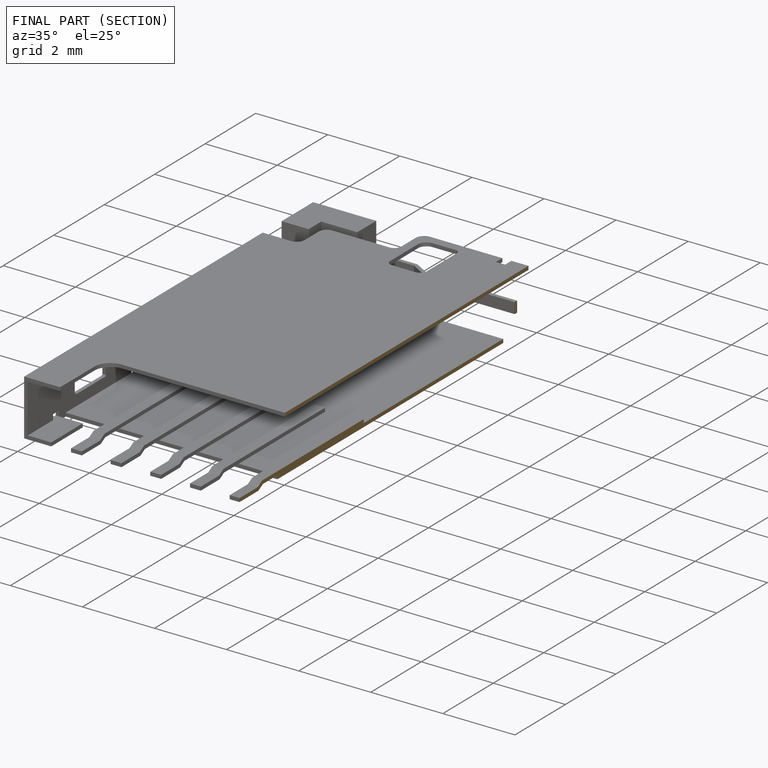
[diagram: finished part — half-section view (interior)]
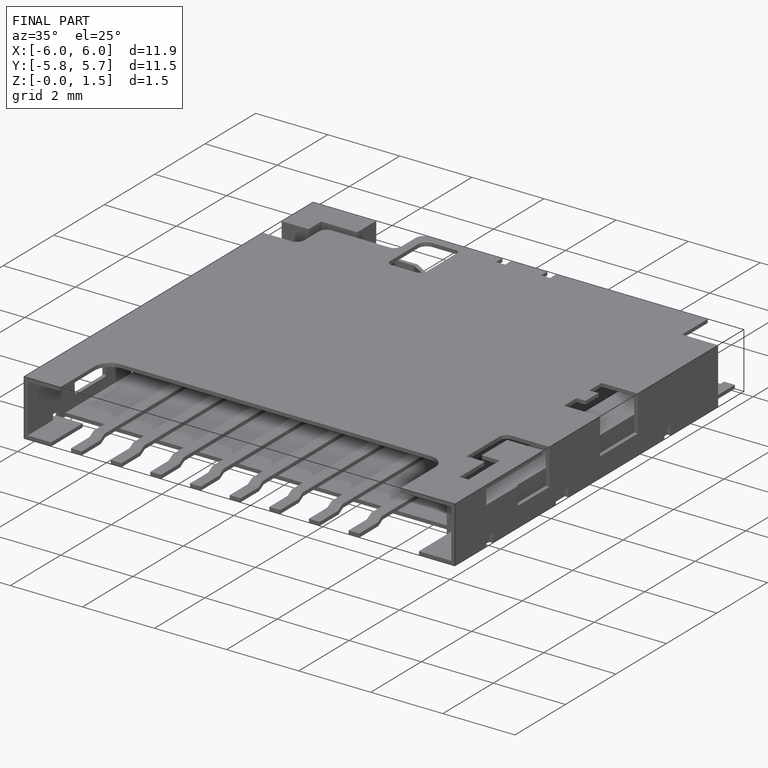
[diagram: finished part — iso view with bounding-box wireframe]
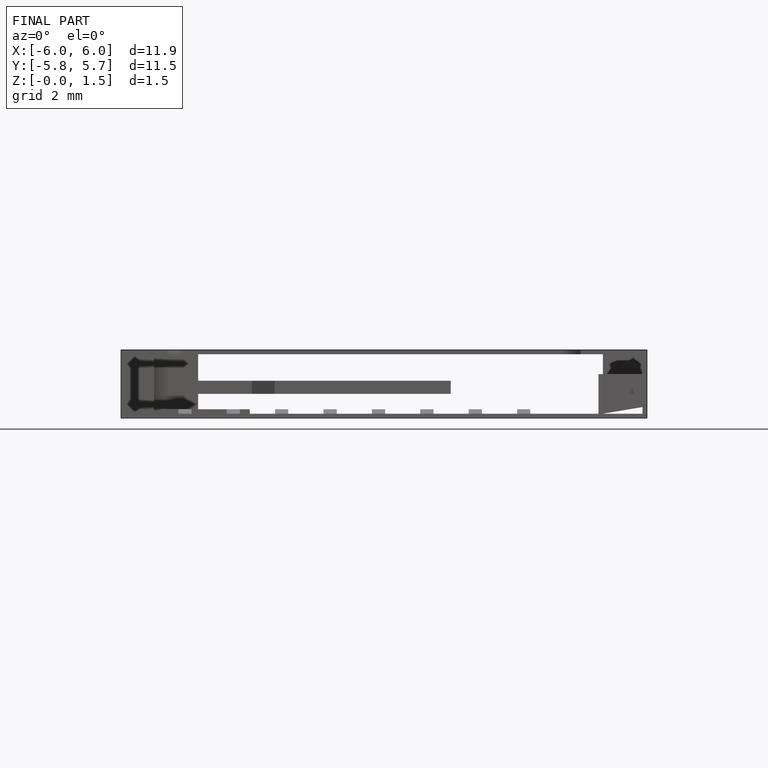
[diagram: finished part — front view with bounding-box wireframe]
